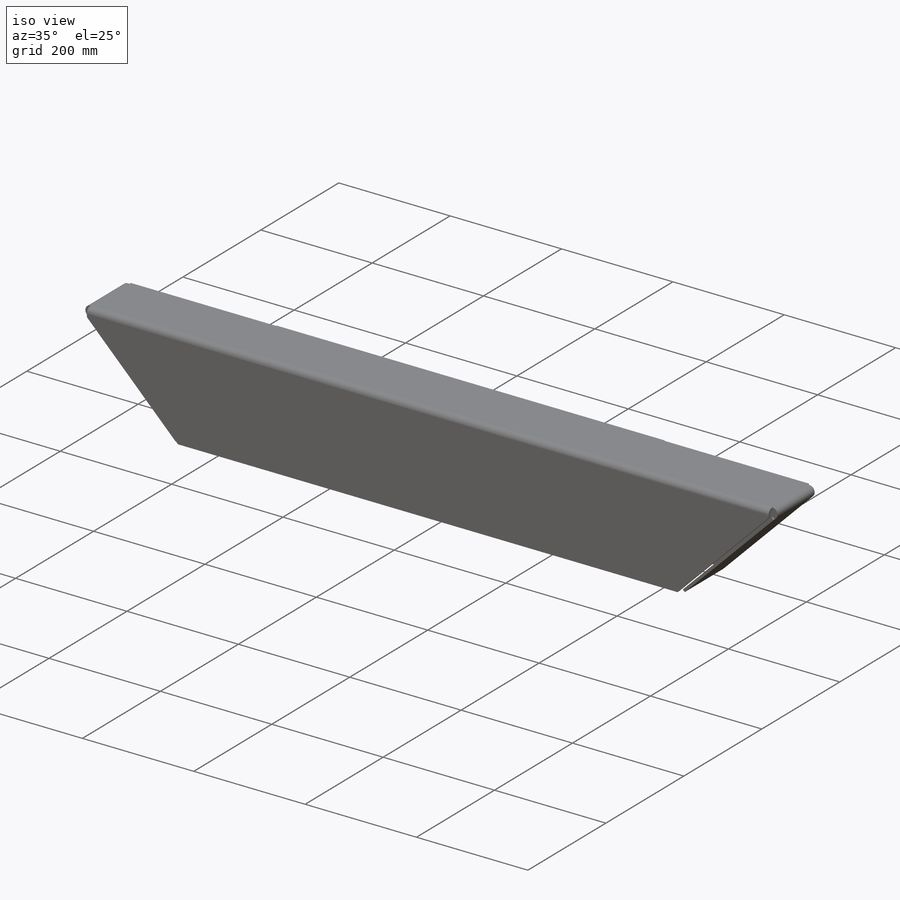
[diagram: iso view]
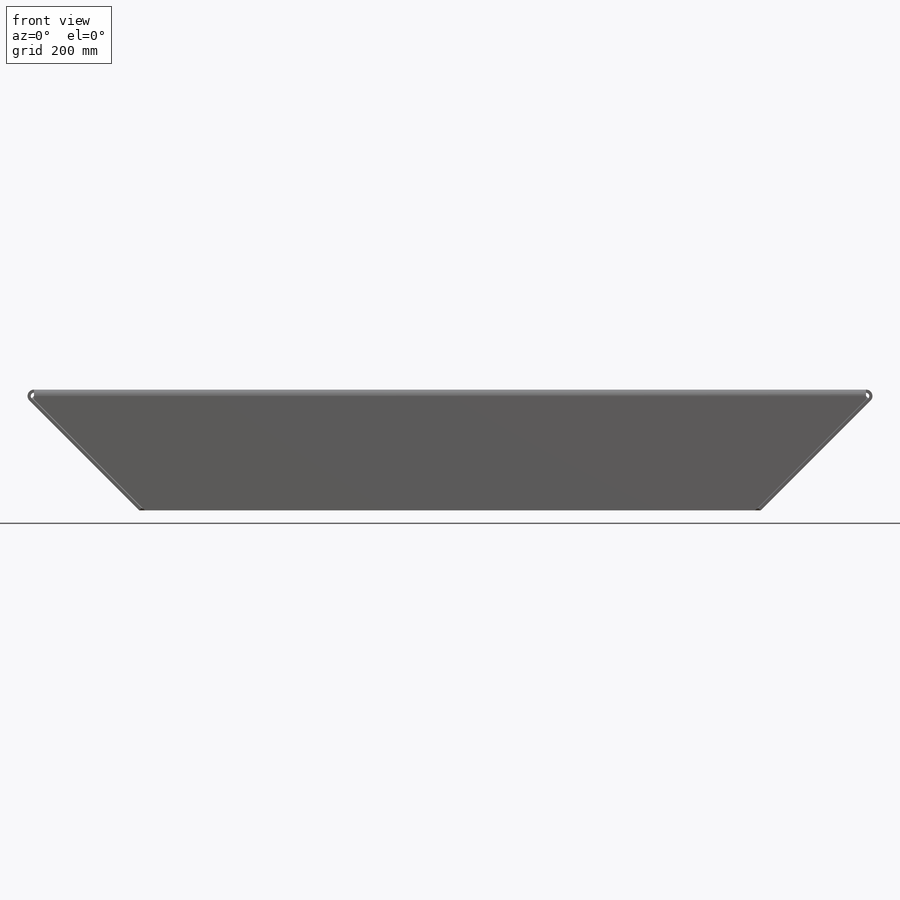
[diagram: front view]
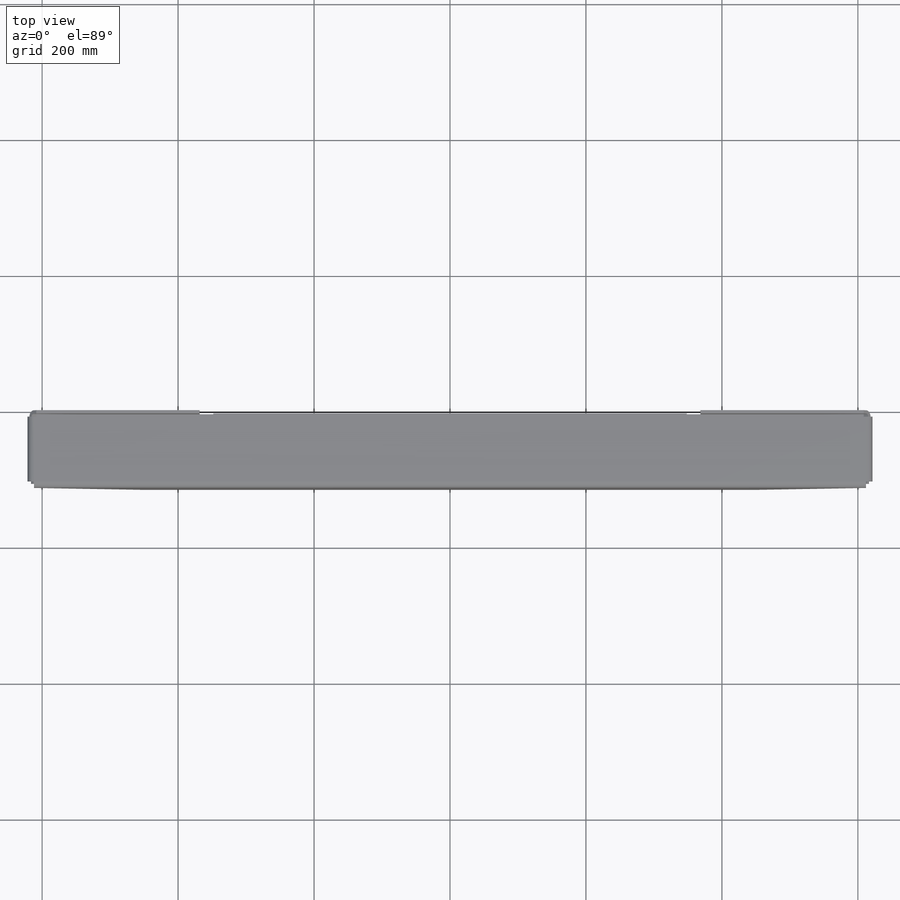
[diagram: top view]
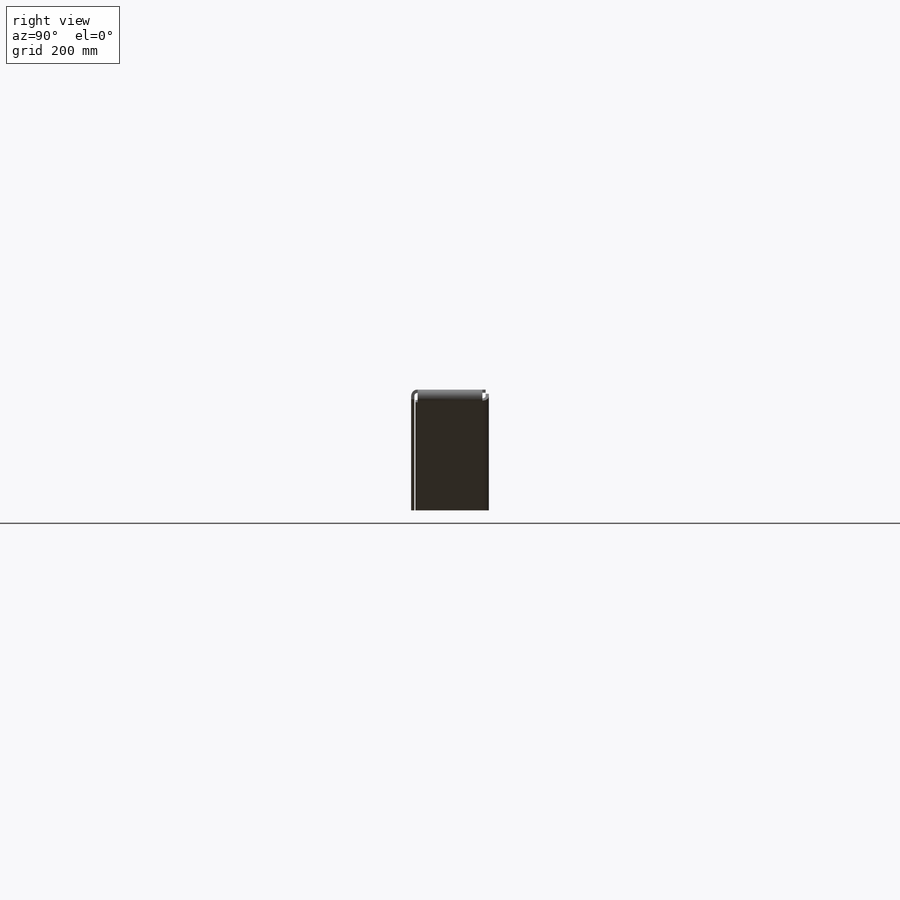
[diagram: right view]
SOLIDWORKS PART (.sldprt)
format: sldprt  version: not decoded by parser v0  size: 302,080 bytes
history: native  units: mm
features: sketch x6, sheet_metal_op x5, material x1, extrude x1, shell x1, cut_extrude x1 + 1 further entry (+12 scaffold rows collapsed; 1 parser-record rows omitted)
feature tree (29):
  scaffold x12  (default folders/planes/origin — collapsed)
  material  "Material <not specified>"
  sketch  "Sketch1"  dims[D1=914.4mm D2=177.8mm D3=177.8mm D4=~251.447171mm D5=177.8mm D6=~251.447171mm]
  extrude  "Boss-Extrude1"  Depth=114.3mm
  sketch  "Sketch2"  dims[c1.D1=4.7625mm c1.D2=4.7625mm c1.D3=914.4mm c2.D1=736.6mm c2.D2=4.7625mm c3.D1=736.6mm c3.D2=177.8mm]
  shell  "Shell1"  Thickness=4.7625mm
  cut_extrude  "Cut-Extrude1"  Depth=4.7625mm SharpBend2=0 SharpBend3=0 SharpBend4=0 SharpBend6=0
  sketch  "Bend-Lines1"
  sketch  "Bounding-Box1"
  sheet_metal_op  "Sheet-Metal(10)"
  "Flat-Pattern(10)"
  sketch  "Bend-Lines2"
  sketch  "Bounding-Box2"
  sheet_metal_op  "Flatten-<SharpBend2>1"
  sheet_metal_op  "Flatten-<SharpBend3>1"
  sheet_metal_op  "Flatten-<SharpBend4>1"
  parser-record x1  (decoder bookkeeping rows leaked as tree rows — omitted from the tree; the rows remain in map.json)
  sheet_metal_op  "Flatten-<SharpBend6>1"
decode coverage: 5 of 14 modeling features carry decoded parameters; 1 rows unclassified (native names shown)
note: ~ marks probable driven/reference dimensions
note: suppression state not decoded; provenance and decode notes live in map.json
